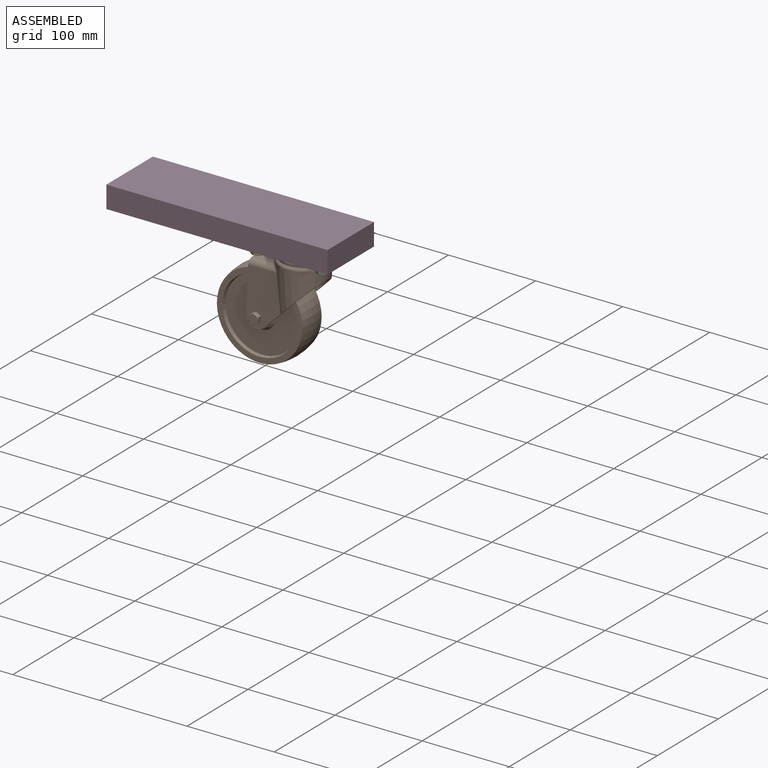
[diagram: assembled view]
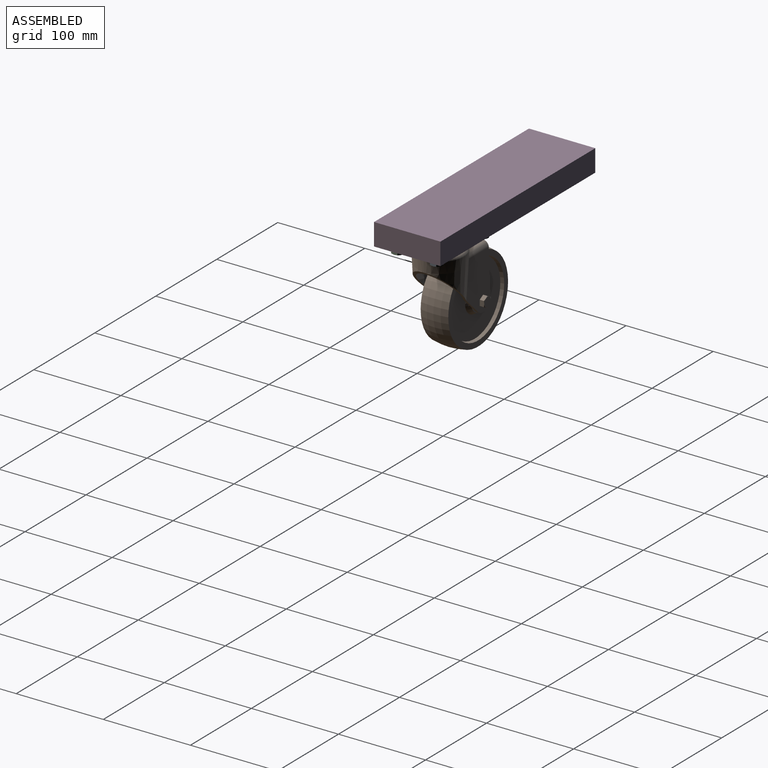
[diagram: assembled view, second angle]
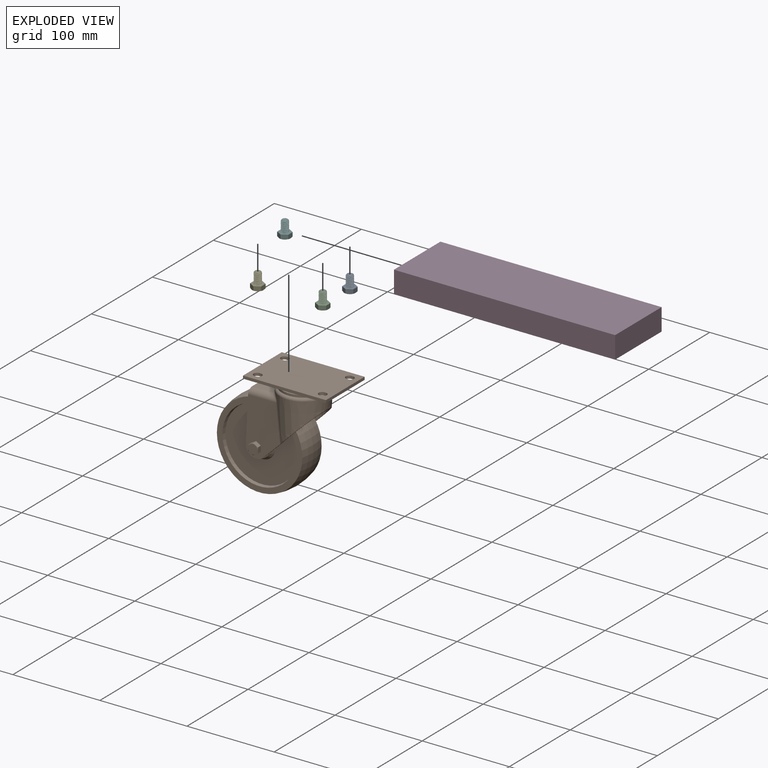
[diagram: exploded view]
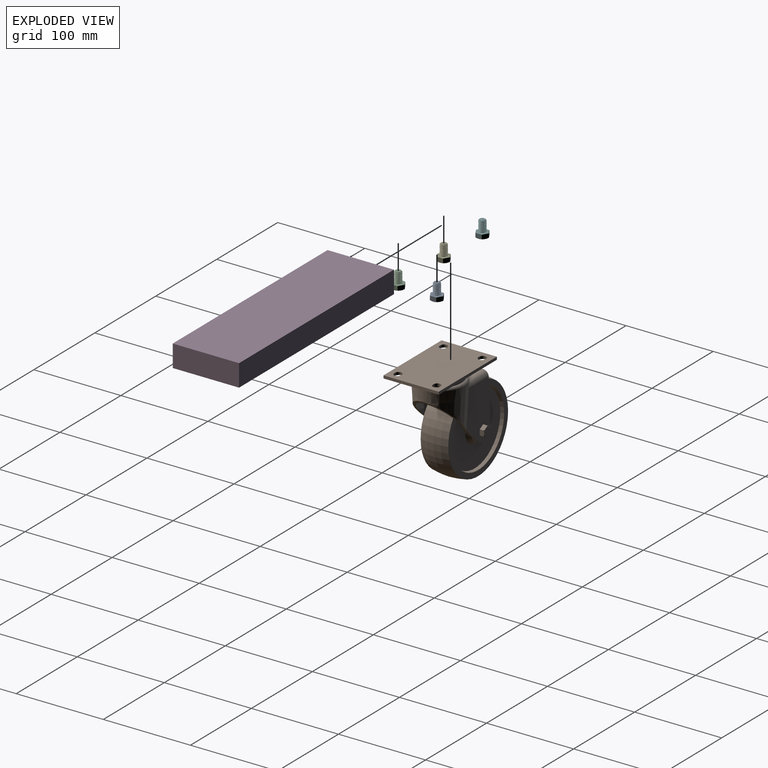
[diagram: exploded view, second angle]
ASSEMBLY  parts=6 mates=5
PART A: 35 faces, bbox 19x15.3x15.3 mm
  f0: plane 7.94x5.77mm, normal (0,0,1), area 36.4mm2, adj f1,f5,f12,f13,f18
  f1: plane 6.95x5.77mm, normal (0,0.87,0.5), area 36.4mm2, adj f0,f2,f12,f17,f18
  f2: plane 6.95x5.77mm, normal (0,0.87,-0.5), area 36.4mm2, adj f1,f3,f12,f16,f17
  f3: plane 7.94x5.77mm, normal (0,0,-1), area 36.4mm2, adj f2,f4,f12,f15,f16
  f4: plane 6.95x5.77mm, normal (0,-0.87,-0.5), area 36.4mm2, adj f3,f5,f12,f14,f15
  f5: plane 6.95x5.77mm, normal (0,-0.87,0.5), area 36.4mm2, adj f0,f4,f12,f13,f14
  f6: cylinder r=3.97mm len=11.84mm, axis (1,0,0), area 36.7mm2, adj f8,f10,f11,f12
  f7: plane 6.22x6.19mm, normal (1,0,0), area 30.1mm2, adj f8,f9,f10,f11
  f8: cone r=3.11mm half-angle=45deg, axis (-1,0,0), area 12.6mm2, adj f6,f7,f10,f11
  f9: cylinder r=3.05mm len=12.7mm, axis (1,0,0), area 30.6mm2, adj f7,f10,f11,f12
  f10: bspline ~13.41x7.94mm, area 203.6mm2, adj f6,f7,f8,f9,f12
  f11: bspline ~13.76x7.94mm, area 203.1mm2, adj f6,f7,f8,f9,f12
  f12: plane 14.66x12.7mm, normal (1,0,0), area 100.6mm2, adj f0,f1,f2,f3,f4,f5,f6,f9
  f13: cone r=6.35mm half-angle=60deg, axis (1,0,0), area 4mm2, adj f0,f5,f19
  f14: cone r=6.35mm half-angle=60deg, axis (1,0,0), area 4mm2, adj f4,f5,f19
  f15: cone r=6.35mm half-angle=60deg, axis (1,0,0), area 4mm2, adj f3,f4,f19
  f16: cone r=6.35mm half-angle=60deg, axis (1,0,0), area 4mm2, adj f2,f3,f19
  f17: cone r=6.35mm half-angle=60deg, axis (1,0,0), area 4mm2, adj f1,f2,f19
  f18: cone r=6.35mm half-angle=60deg, axis (1,0,0), area 4mm2, adj f0,f1,f19
  f19: plane 12.7x12.7mm, normal (-1,0,0), area 123.9mm2, adj f13,f14,f15,f16,f17,f18,f20,f21
  f20: cylinder r=0.19mm len=0.38mm, axis (-1,0,0), area 0.2mm2, adj f19,f21,f23,f24
  f21: plane 2.16x0.25mm, normal (0,0,-1), area 0.5mm2, adj f19,f20,f22,f24
  f22: cylinder r=0.19mm len=0.38mm, axis (-1,0,0), area 0.2mm2, adj f19,f21,f23,f24
  f23: plane 2.16x0.25mm, normal (0,0,1), area 0.5mm2, adj f19,f20,f22,f24
  f24: plane 2.54x0.38mm, normal (-1,0,0), area 0.9mm2, adj f20,f21,f22,f23
  f25: cylinder r=0.19mm len=0.36mm, axis (-1,0,0), area 0.2mm2, adj f19,f26,f28,f29
  f26: plane 1.87x1.08mm, normal (0,0.87,0.5), area 0.5mm2, adj f19,f25,f27,f29
  f27: cylinder r=0.19mm len=0.36mm, axis (-1,0,0), area 0.2mm2, adj f19,f26,f28,f29
  f28: plane 1.87x1.08mm, normal (0,-0.87,-0.5), area 0.5mm2, adj f19,f25,f27,f29
  f29: plane 2.25x1.46mm, normal (-1,0,0), area 0.9mm2, adj f25,f26,f27,f28
  f30: cylinder r=0.19mm len=0.36mm, axis (-1,0,0), area 0.2mm2, adj f19,f31,f33,f34
  f31: plane 1.87x1.08mm, normal (0,-0.87,0.5), area 0.5mm2, adj f19,f30,f32,f34
  f32: cylinder r=0.19mm len=0.36mm, axis (-1,0,0), area 0.2mm2, adj f19,f31,f33,f34
  f33: plane 1.87x1.08mm, normal (0,0.87,-0.5), area 0.5mm2, adj f19,f30,f32,f34
  f34: plane 2.25x1.46mm, normal (-1,0,0), area 0.9mm2, adj f30,f31,f32,f33
PART B: 96 faces, bbox 138.6x127.5x64 mm
  f0: plane 25.4x25.4mm, normal (0,0,1), area 380mm2, adj f1,f11
  f1: cone r=15.72mm half-angle=30deg, axis (0,0,-1), area 539.5mm2, adj f0,f2
  f2: plane 83.95x83.95mm, normal (0,0,1), area 4758.3mm2, adj f1,f3
  f3: cone r=42.67mm half-angle=10deg, axis (0,0,1), area 1069.9mm2, adj f2,f4
  f4: plane 98.04x98.04mm, normal (0,0,1), area 1829.2mm2, adj f3,f5
  f5: revolved ~101.6x101.6mm, area 10099.3mm2, adj f4,f6
  f6: plane 98.04x98.04mm, normal (0,0,-1), area 1829.2mm2, adj f5,f7
  f7: cone r=41.97mm half-angle=10deg, axis (0,0,-1), area 1069.9mm2, adj f6,f8
  f8: plane 83.95x83.95mm, normal (0,0,-1), area 4758.3mm2, adj f7,f9
  f9: cone r=12.7mm half-angle=30deg, axis (0,0,1), area 539.5mm2, adj f8,f10
  f10: plane 25.4x25.4mm, normal (0,0,-1), area 380mm2, adj f9,f69
  f11: cylinder r=6.35mm len=12.7mm, axis (0,0,-1), area 50.7mm2, adj f0,f44
  f12: plane 49.66x49.66mm, normal (0,-1,0), area 123.7mm2, adj f40,f51
  f13: plane 95.25x63.5mm, normal (0,-1,0), area 4216.2mm2, adj f14,f15,f16,f17,f19,f20,f21,f22
  f14: plane 63.5x3.18mm, normal (-1,0,0), area 201.6mm2, adj f13,f15,f17,f18
  f15: plane 95.25x3.18mm, normal (0,0,-1), area 302.4mm2, adj f13,f14,f16,f18
  f16: plane 63.5x3.18mm, normal (1,0,0), area 201.6mm2, adj f13,f15,f17,f18
  f17: plane 95.25x3.18mm, normal (0,0,1), area 302.4mm2, adj f13,f14,f16,f18
  f18: plane 95.25x63.5mm, normal (0,1,0), area 5800mm2, adj f14,f15,f16,f17,f19,f20,f21,f22
  f19: cylinder r=3.97mm len=7.94mm, axis (0,1,0), area 39.6mm2, adj f13,f18,f20,f22
  f20: plane 3.18x1.59mm, normal (0,0,1), area 5mm2, adj f13,f18,f19,f21
  f21: cylinder r=3.97mm len=7.94mm, axis (0,1,0), area 39.6mm2, adj f13,f18,f20,f22
  f22: plane 3.18x1.59mm, normal (0,0,-1), area 5mm2, adj f13,f18,f19,f21
  f23: cylinder r=3.97mm len=7.94mm, axis (0,1,0), area 39.6mm2, adj f13,f18,f24,f26
  f24: plane 3.18x1.59mm, normal (0,0,1), area 5mm2, adj f13,f18,f23,f25
  f25: cylinder r=3.97mm len=7.94mm, axis (0,1,0), area 39.6mm2, adj f13,f18,f24,f26
  f26: plane 3.18x1.59mm, normal (0,0,-1), area 5mm2, adj f13,f18,f23,f25
  f27: cylinder r=3.97mm len=7.94mm, axis (0,1,0), area 39.6mm2, adj f13,f18,f28,f30
  f28: plane 3.18x1.59mm, normal (0,0,-1), area 5mm2, adj f13,f18,f27,f29
  f29: cylinder r=3.97mm len=7.94mm, axis (0,1,0), area 39.6mm2, adj f13,f18,f28,f30
  f30: plane 3.18x1.59mm, normal (0,0,1), area 5mm2, adj f13,f18,f27,f29
  f31: cylinder r=3.97mm len=7.94mm, axis (0,1,0), area 39.6mm2, adj f13,f18,f32,f34
  f32: plane 3.18x1.59mm, normal (0,0,1), area 5mm2, adj f13,f18,f31,f33
  f33: cylinder r=3.97mm len=7.94mm, axis (0,1,0), area 39.6mm2, adj f13,f18,f32,f34
  f34: plane 3.18x1.59mm, normal (0,0,-1), area 5mm2, adj f13,f18,f31,f33
  f35: torus R=22.45mm, axis (0,1,0), area 561.7mm2, adj f13,f36
  f36: cylinder r=24.83mm len=49.66mm, axis (0,1,0), area 237.7mm2, adj f35,f37
  f37: plane 49.66x49.66mm, normal (0,-1,0), area 267.4mm2, adj f36,f38
  f38: cylinder r=23.05mm len=46.1mm, axis (0,1,0), area 165.5mm2, adj f37,f39
  f39: plane 49.66x49.66mm, normal (0,1,0), area 267.4mm2, adj f38,f40
  f40: cylinder r=24.83mm len=49.66mm, axis (0,1,0), area 396.2mm2, adj f12,f39
  f41: plane 64.3x39.28mm, normal (0,0,-1), area 1968.6mm2, adj f47,f49,f55,f57,f58,f83,f84,f85
  f42: plane 64.3x39.28mm, normal (0,0,1), area 1968.6mm2, adj f46,f50,f56,f57,f58,f70,f71,f72
  f43: plane 64.3x39.28mm, normal (0,0,1), area 1948.8mm2, adj f55,f57,f58,f64,f66,f69
  f44: plane 64.3x39.28mm, normal (0,0,-1), area 1948.8mm2, adj f11,f56,f57,f58,f63,f67
  f45: plane 30.48x22.27mm, normal (0,1,0), area 594.3mm2, adj f46,f47,f53,f57
  f46: cylinder r=6.35mm len=32.18mm, axis (1,0,0), area 271.5mm2, adj f42,f45,f54,f57
  f47: cylinder r=6.35mm len=32.18mm, axis (-1,0,0), area 271.5mm2, adj f41,f45,f52,f57
  f48: cone r=27.37mm half-angle=3deg, axis (0,1,0), area 3342.2mm2, adj f49,f50,f51,f52,f53,f54,f58
  f49: bspline ~63.7x7.78mm, area 70.8mm2, adj f41,f48,f52,f58
  f50: bspline ~63.7x7.78mm, area 70.8mm2, adj f42,f48,f54,f58
  f51: torus R=24.02mm, axis (0,-1,0), area 844.5mm2, adj f12,f48
  f52: bspline ~12.45x10.76mm, area 51.4mm2, adj f47,f48,f49,f53
  f53: torus R=30.36mm, axis (0,-1,0), area 153.4mm2, adj f45,f48,f52,f54
  f54: bspline ~12.44x10.3mm, area 51.4mm2, adj f46,f48,f50,f53
  f55: cylinder r=11.91mm len=20.28mm, axis (0,0,-1), area 90.8mm2, adj f41,f43,f57,f58
  f56: cylinder r=11.91mm len=20.28mm, axis (0,0,-1), area 90.8mm2, adj f42,f44,f57,f58
  f57: plane 58.25x43.32mm, normal (-1,0.05,0), area 473.6mm2, adj f41,f42,f43,f44,f45,f46,f47,f55
  f58: plane 57.85x57.22mm, normal (0.7,-0.71,0), area 637.7mm2, adj f41,f42,f43,f44,f48,f49,f50,f55
  f59: torus R=30.36mm, axis (0,-1,0), area 284.5mm2, adj f61,f62,f65,f68
  f60: plane 48.05x48.05mm, normal (0,-1,0), area 1813mm2, adj f65
  f61: bspline ~14.22x10.76mm, area 80.9mm2, adj f59,f64,f65,f66
  f62: bspline ~14.22x10.76mm, area 80.9mm2, adj f59,f63,f65,f67
  f63: bspline ~63.87x9.16mm, area 139.9mm2, adj f44,f58,f62,f65
  f64: bspline ~63.87x9.16mm, area 139.9mm2, adj f43,f58,f61,f65
  f65: cone r=24.2mm half-angle=3deg, axis (0,1,0), area 3092.2mm2, adj f58,f59,f60,f61,f62,f63,f64
  f66: cylinder r=3.17mm len=32.18mm, axis (-1,0,0), area 136.2mm2, adj f43,f57,f61,f68
  f67: cylinder r=3.17mm len=32.18mm, axis (1,0,0), area 136.2mm2, adj f44,f57,f62,f68
  f68: plane 30.48x22.44mm, normal (0,-1,0), area 599.3mm2, adj f57,f59,f66,f67
  f69: cylinder r=6.35mm len=12.7mm, axis (0,0,-1), area 50.7mm2, adj f10,f43
  f70: plane 6.08x5.69mm, normal (-0.5,-0.87,0), area 32mm2, adj f42,f71,f75,f77,f78
  f71: plane 6.08x5.69mm, normal (0.5,-0.87,0), area 32mm2, adj f42,f70,f72,f76,f77
  f72: plane 6.95x5.69mm, normal (1,0,0), area 32mm2, adj f42,f71,f73,f76,f81
  f73: plane 6.08x5.69mm, normal (0.5,0.87,0), area 32mm2, adj f42,f72,f74,f80,f81
  f74: plane 6.08x5.69mm, normal (-0.5,0.87,0), area 32mm2, adj f42,f73,f75,f79,f80
  f75: plane 6.95x5.69mm, normal (-1,0,0), area 32mm2, adj f42,f70,f74,f78,f79
  f76: cone r=5.56mm half-angle=60deg, axis (0,0,-1), area 3mm2, adj f71,f72,f82
  f77: cone r=5.56mm half-angle=60deg, axis (0,0,-1), area 3mm2, adj f70,f71,f82
  f78: cone r=5.56mm half-angle=60deg, axis (0,0,-1), area 3mm2, adj f70,f75,f82
  f79: cone r=5.56mm half-angle=60deg, axis (0,0,-1), area 3mm2, adj f74,f75,f82
  f80: cone r=5.56mm half-angle=60deg, axis (0,0,-1), area 3mm2, adj f73,f74,f82
  f81: cone r=5.56mm half-angle=60deg, axis (0,0,-1), area 3mm2, adj f72,f73,f82
  f82: plane 11.11x11.11mm, normal (0,0,1), area 97mm2, adj f76,f77,f78,f79,f80,f81
  f83: plane 6.08x5.69mm, normal (-0.5,-0.87,0), area 32mm2, adj f41,f84,f88,f90,f91
  f84: plane 6.08x5.69mm, normal (0.5,-0.87,0), area 32mm2, adj f41,f83,f85,f89,f90
  f85: plane 6.95x5.69mm, normal (1,0,0), area 32mm2, adj f41,f84,f86,f89,f94
  f86: plane 6.08x5.69mm, normal (0.5,0.87,0), area 32mm2, adj f41,f85,f87,f93,f94
  f87: plane 6.08x5.69mm, normal (-0.5,0.87,0), area 32mm2, adj f41,f86,f88,f92,f93
  f88: plane 6.95x5.69mm, normal (-1,0,0), area 32mm2, adj f41,f83,f87,f91,f92
  f89: cone r=5.56mm half-angle=60deg, axis (0,0,1), area 3mm2, adj f84,f85,f95
  f90: cone r=5.56mm half-angle=60deg, axis (0,0,1), area 3mm2, adj f83,f84,f95
  f91: cone r=5.56mm half-angle=60deg, axis (0,0,1), area 3mm2, adj f83,f88,f95
  f92: cone r=5.56mm half-angle=60deg, axis (0,0,1), area 3mm2, adj f87,f88,f95
  f93: cone r=5.56mm half-angle=60deg, axis (0,0,1), area 3mm2, adj f86,f87,f95
  f94: cone r=5.56mm half-angle=60deg, axis (0,0,1), area 3mm2, adj f85,f86,f95
  f95: plane 11.11x11.11mm, normal (0,0,-1), area 97mm2, adj f89,f90,f91,f92,f93,f94
PART C: same geometry as A
PART D: 14 faces, bbox 254x76.2x25.4 mm
  f0: plane 76.2x25.4mm, normal (-1,0,0), area 1935.5mm2, adj f1,f3,f4,f5
  f1: plane 254x25.4mm, normal (0,-1,0), area 6451.6mm2, adj f0,f2,f4,f5
  f2: plane 76.2x25.4mm, normal (1,0,0), area 1935.5mm2, adj f1,f3,f4,f5
  f3: plane 254x25.4mm, normal (0,1,0), area 6451.6mm2, adj f0,f2,f4,f5
  f4: plane 254x76.2mm, normal (0,0,1), area 19354.8mm2, adj f0,f1,f2,f3
  f5: plane 254x76.2mm, normal (0,0,-1), area 19220.9mm2, adj f0,f1,f2,f3,f7,f9,f11,f13
  f6: cone r=0mm half-angle=59deg, axis (0,0,-1), area 39mm2, adj f7
  f7: cylinder r=3.26mm len=16.93mm, axis (0,0,-1), area 347.3mm2, adj f5,f6
  f8: cone r=0mm half-angle=59deg, axis (0,0,-1), area 39mm2, adj f9
  f9: cylinder r=3.26mm len=16.93mm, axis (0,0,-1), area 347.3mm2, adj f5,f8
  f10: cone r=0mm half-angle=59deg, axis (0,0,-1), area 39mm2, adj f11
  f11: cylinder r=3.26mm len=16.93mm, axis (0,0,-1), area 347.3mm2, adj f5,f10
  f12: cone r=0mm half-angle=59deg, axis (0,0,-1), area 39mm2, adj f13
  f13: cylinder r=3.26mm len=16.93mm, axis (0,0,-1), area 347.3mm2, adj f5,f12
PART E: same geometry as A
PART F: same geometry as A
PLACE A rot(axis=(0,-1,0),90deg) t=(142.18,92.53,50.46)mm
PLACE B rot(axis=(1,0,0),90deg) t=(104.94,70.14,49.87)mm
PLACE C rot(axis=(0,-1,0),90deg) t=(142.18,48.08,50.46)mm
PLACE D t=(31.92,70.14,49.87)mm
PLACE E rot(axis=(0,-1,0),90deg) t=(67.57,48.08,50.46)mm
PLACE F rot(axis=(0,-1,0),90deg) t=(67.57,92.53,50.46)mm
MATE fastened F.f12 <-> D.f12  axis (0,0,1) through (67.63,92.36,46.69)mm
MATE fastened E.f12 <-> D.f10  axis (0,0,1) through (67.63,47.91,46.69)mm
MATE fastened A.f12 <-> D.f6  axis (0,0,1) through (142.25,92.36,46.69)mm
MATE fastened C.f12 <-> D.f8  axis (0,0,1) through (142.25,47.91,46.69)mm
MATE fastened B.f18 <-> D.f5  axis (0,0,1) through (152.57,101.89,49.87)mm
